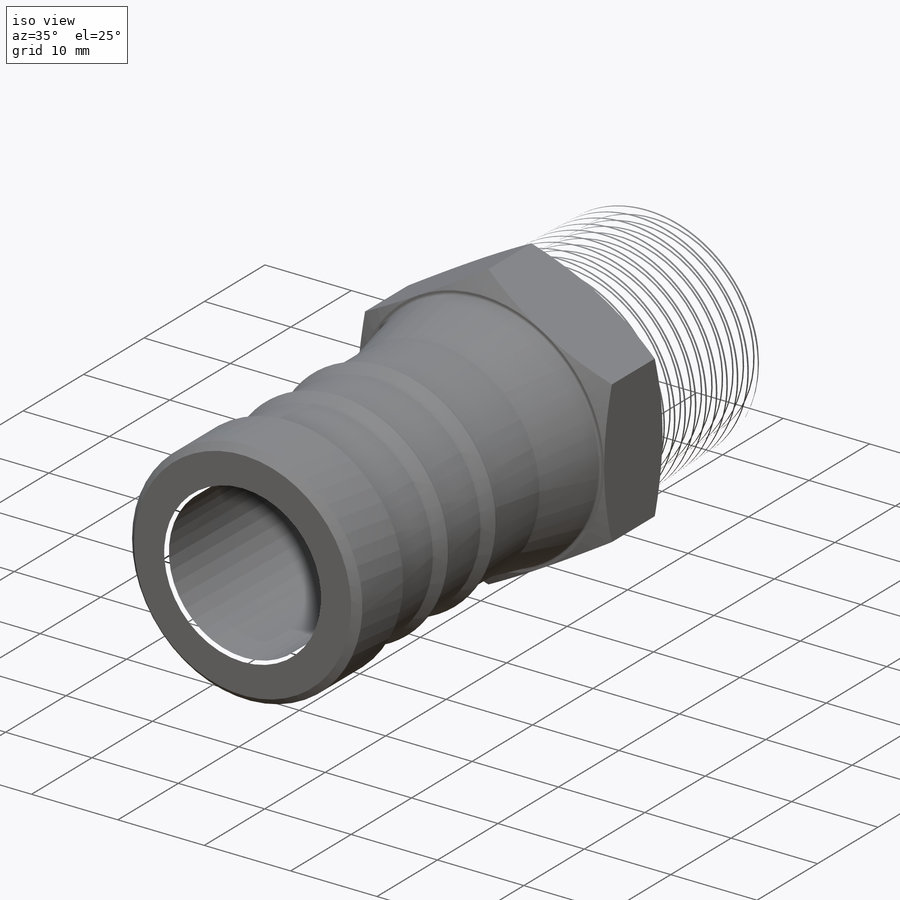
[diagram: iso view]
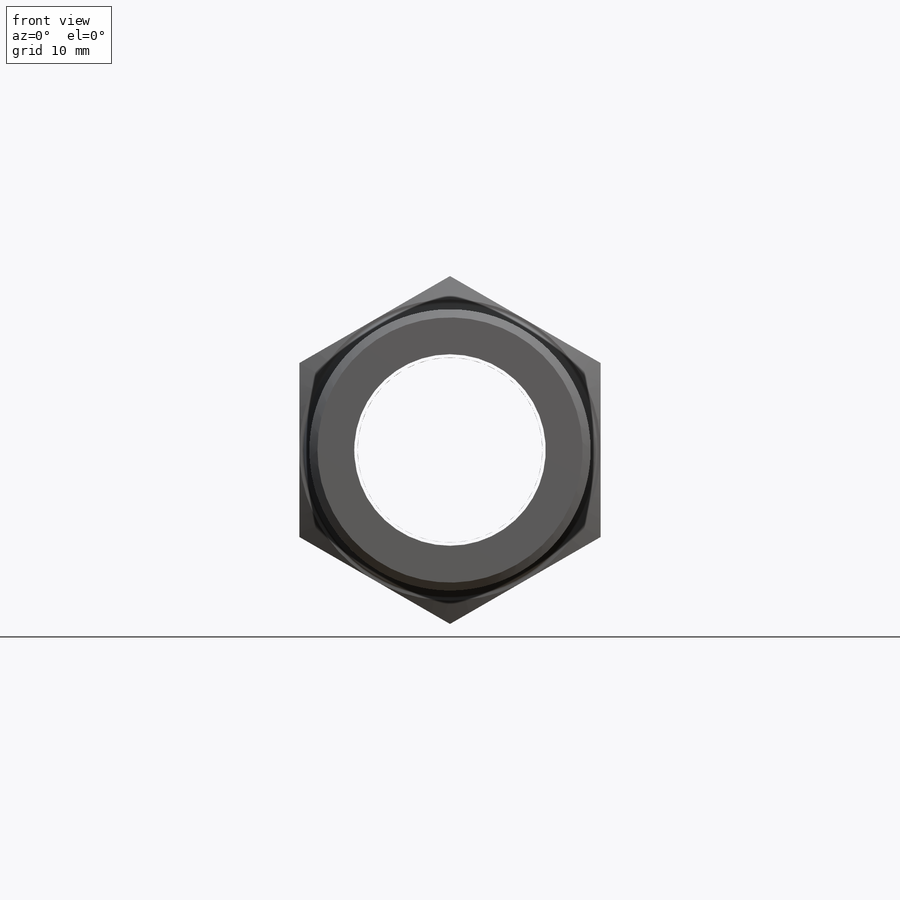
[diagram: front view]
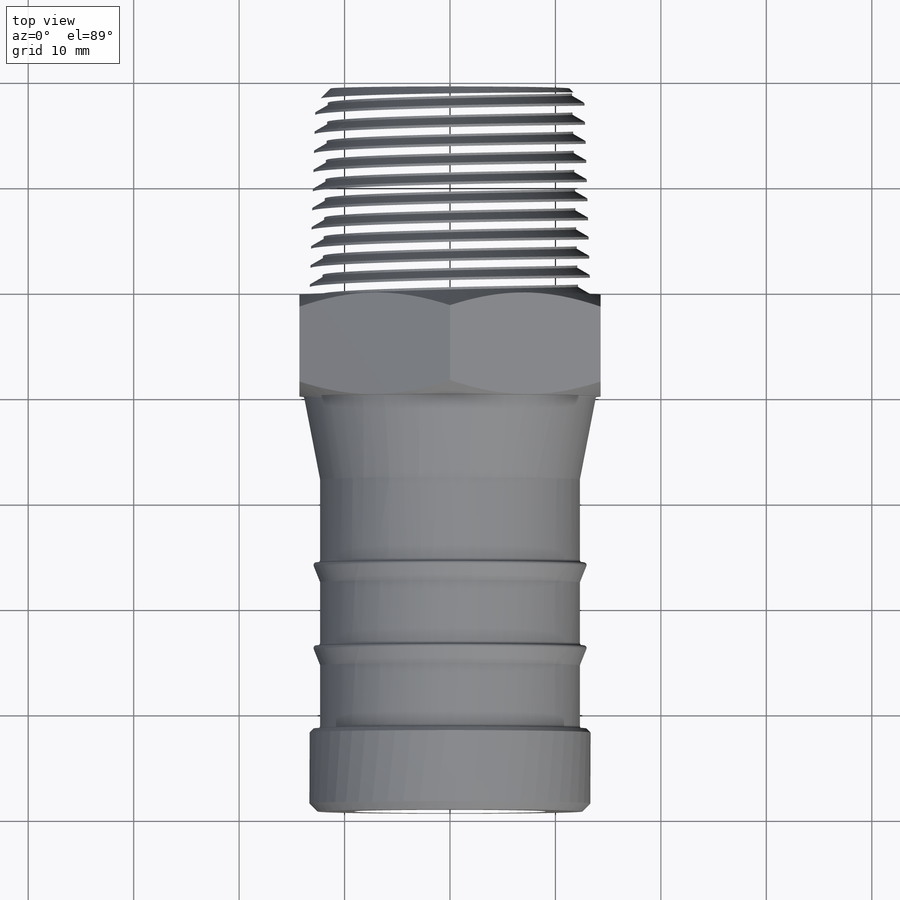
[diagram: top view]
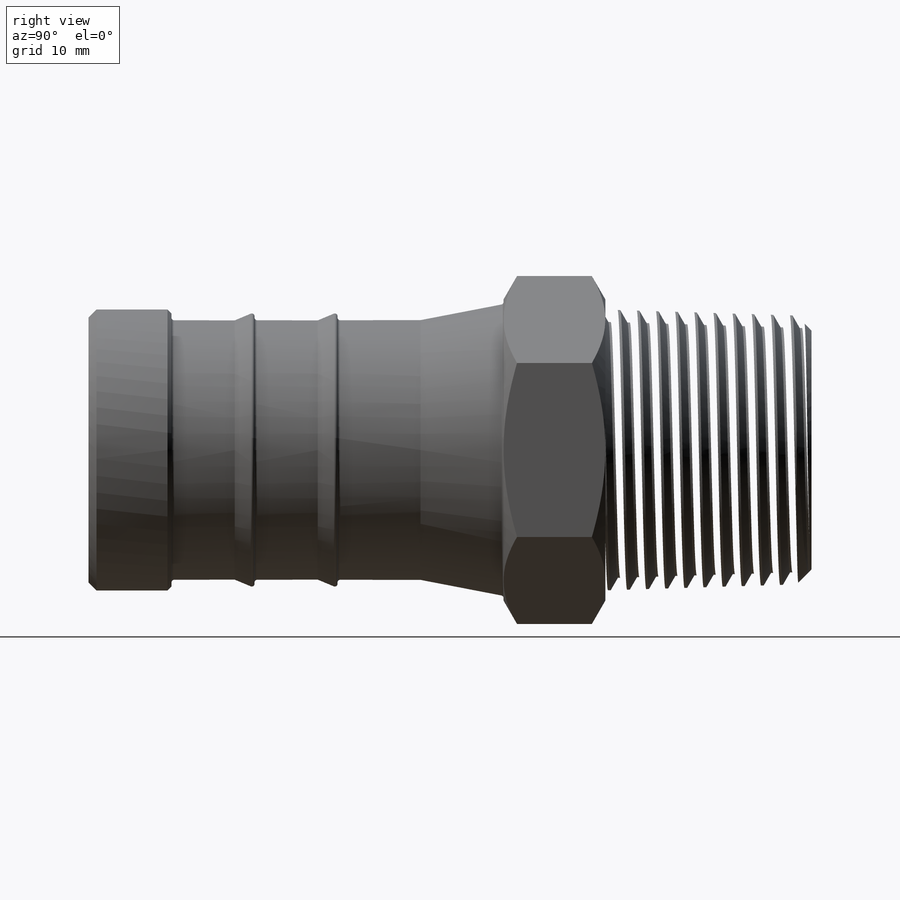
[diagram: right view]
SOLIDWORKS PART (.sldprt)
format: sldprt  version: not decoded by parser v0  size: 1,445,888 bytes
history: native  units: mm
features: sketch x11, chamfer x4, cut_extrude x3, extrude x2, cut_revolve x2, material x1, revolve x1, plane x1, helix x1, sweep x1 (+15 scaffold rows collapsed)
feature tree (42):
  scaffold x15  (default folders/planes/origin — collapsed)
  material  "Material <not specified>"
  sketch  "Sketch1"  dims[c1.Hose ID=25.4mm c1.Pipe OD=10.287mm c1.Length=25.4mm c1.Hex=28.575mm c1.Thread Length=9.906mm c1.Barb End Length=39.37mm c1.Hex Length=5.08mm c1.Barb ID=17.526mm c1.Barb OD=26.67mm c1.L4=~9.96696mm c1.D1=~10.851976mm c1.Taper=~1.783333deg c1.Pitch=~0.940741mm c1.Pipe ID=6.8326mm c2.Length=15.494mm c3.Length=68.58mm c3.Barb End Length2=10.414mm c3.Barb ID2=2.032mm c3.Hose ID2=3.175mm c3.Barb OD2=4.064mm c3.Thread Length=19.558mm c3.L4=20.1549mm c3.D1=~22.86049mm c3.Taper=~1.783333deg c3.Pipe OD=26.67mm c3.Pipe ID=17.78mm c3.Pitch=~1.814286mm]
  sketch  "Sketch2"  dims[c1.D2=0.254mm c1.D5=0.254mm c1.D6=0.254mm c1.D1=4.445mm c2.D2=4.445mm c2.D1=~2.179861mm c3.D1=22.0deg c3.D3=1.016mm c3.D4=5.08mm c4.D4=11.0deg c4.D7=0.635mm]
  revolve  "Revolve1"  Angle=360deg
  chamfer  "Chamfer1"  Distance=0.381mm Angle=45deg
  chamfer  "Chamfer2"  Distance=0.762mm Angle=45deg
  plane  "Plane1"
  sketch  "Sketch3"
  extrude  "Boss-Extrude1"  [1 undecoded]
  sketch  "Sketch4"  dims[D1=0.0mm]
  helix  "Helix/Spiral1"  Pitch=21.969186mm
  sketch  "Sketch5"  dims[D1=~1.814286mm D2=~0.226786mm]
  sweep  "Cut-Sweep1"
  sketch  "Sketch6"
  cut_extrude  "Cut-Extrude1"  [1 undecoded]
  sketch  "Sketch7"
  extrude  "Boss-Extrude2"  [1 undecoded]
  sketch  "Sketch8"
  cut_extrude  "Cut-Extrude2"  [1 undecoded]
  sketch  "Sketch9"  dims[D1=0.0mm]
  cut_extrude  "Cut-Extrude3"  [1 undecoded]
  sketch  "Sketch10"
  cut_revolve  "Cut-Revolve1"  Angle=360deg
  chamfer  "Chamfer3"  Distance=0.3175mm Angle=45deg
  sketch  "Sketch11"  dims[c1.D1=~4.370758mm c2.D1=59.0deg]
  cut_revolve  "Cut-Revolve2"  Angle=360deg
  chamfer  "Chamfer4"  Distance=0.508mm Angle=45deg
decode coverage: 14 of 25 modeling features carry decoded parameters
note: ~ marks probable driven/reference dimensions
note: 5 parameter values undecoded
summary: no parameter record found for 5 features
note: suppression state not decoded; provenance and decode notes live in map.json
